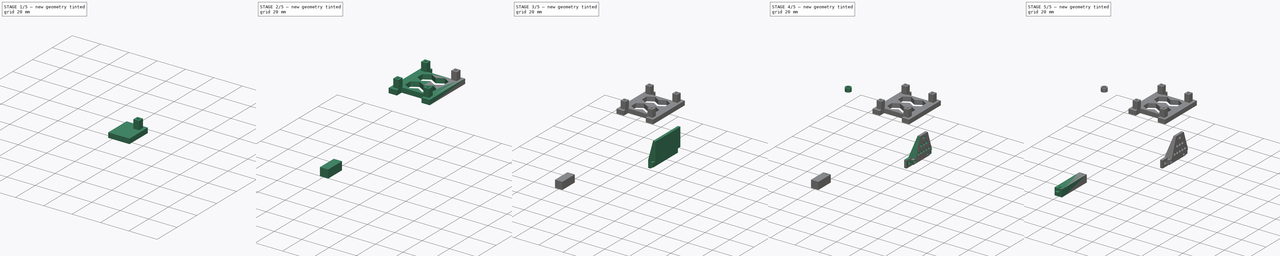
[diagram: build sequence overview — one tinted view per stage of 5, left to right]
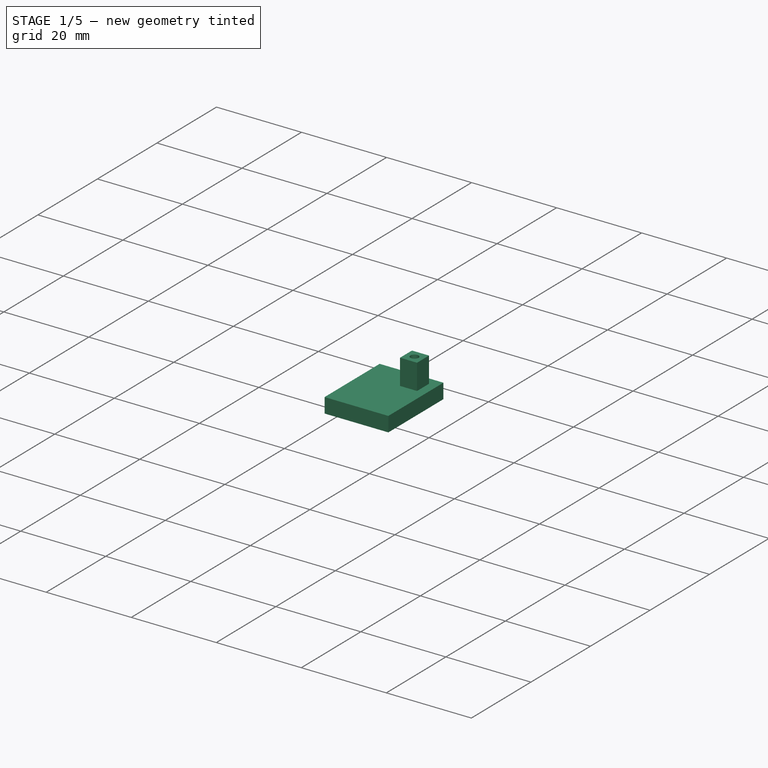
[diagram: stage 1 of 5 — iso view after this stage's code; geometry added in this stage tinted green]
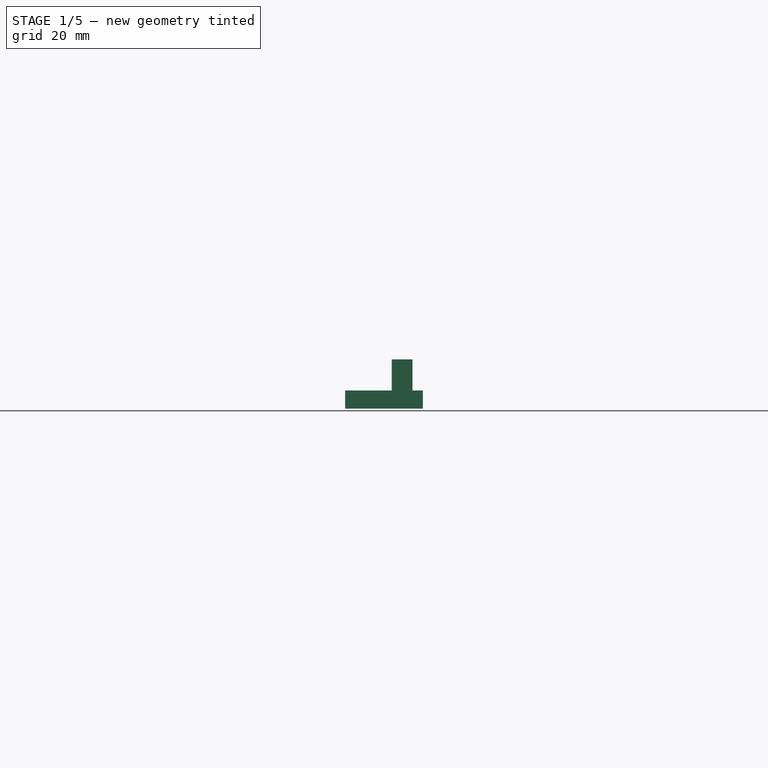
[diagram: stage 1 of 5 — front view after this stage's code; geometry added in this stage tinted green]
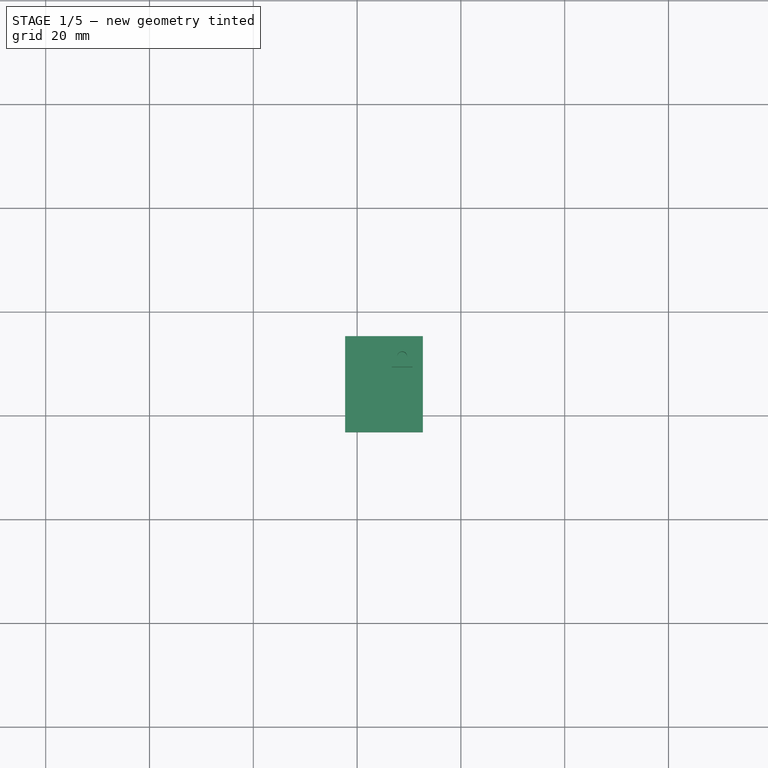
[diagram: stage 1 of 5 — top view after this stage's code; geometry added in this stage tinted green]
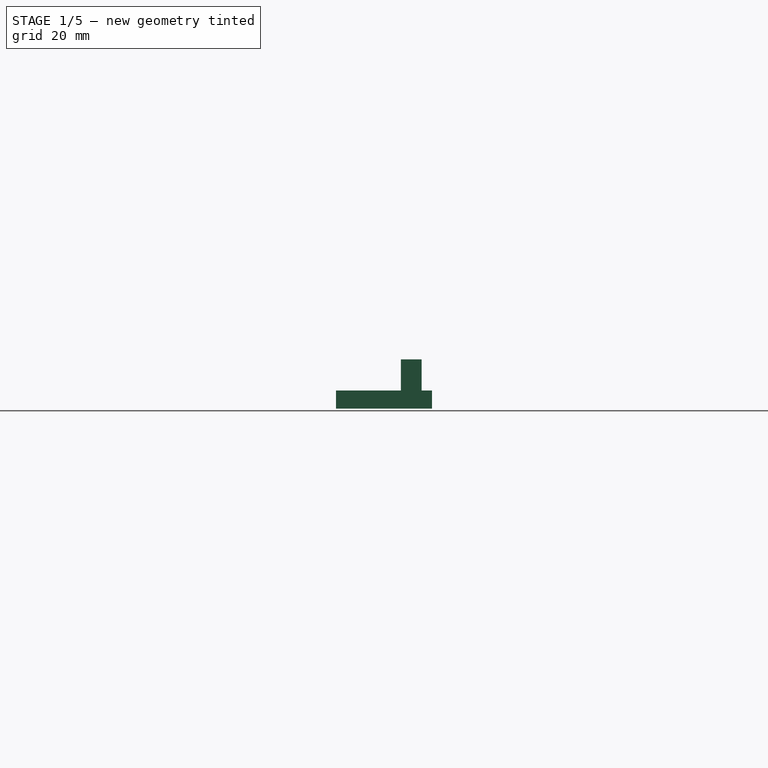
[diagram: stage 1 of 5 — right view after this stage's code; geometry added in this stage tinted green]
FCSTD DOCUMENT  (FreeCAD 0.21R33515 (Git))
Label: shocks
License: All rights reserved
LicenseURL: http://en.wikipedia.org/wiki/All_rights_reserved
objects: Sketcher::SketchObject×14, PartDesign::Pad×8, PartDesign::Pocket×6, PartDesign::Body×5, PartDesign::Mirrored×4, Spreadsheet::Sheet×1, PartDesign::MultiTransform×1
note: 52 computed .brp shape members not serialized (recipe doc carries the construction recipe); baked Part::Feature solids carry a one-line shape summary decoded from their .brp

FEATURE [PartDesign::Body] Body010  label="washer"
  Group = -> [Sketch047,Pad023]
  Origin = -> Origin010
  Placement = pos=(-5,0,0) rot=(0,0,1;0rad)
  Tip = -> Pad023
FEATURE [Spreadsheet::Sheet] Spreadsheet  label="param"
  cells = A1=common; A2(wall_thickness)==2 mm; A3(thread_diam)==3 mm; A4(rail_depth)==2 mm; A5(rail_height)==3.5 mm; A6(rail_length)==20 mm; A7(rail_diam)==2 mm; A8(body_width_front)==28 mm; A9(body_width_back)==33 mm; A10=shock tower; A11(shock_tower_width)==29 mm; A12(tower_diam)==2.3 mm
FEATURE [Sketcher::SketchObject] Sketch
  FullyConstrained = false
  MapMode = 5
  Support = -> [XY_Plane]
  expr: Constraints[9] = <<param>>.body_width_back / 2 + <<param>>.rail_depth
  sketch-geometry (4):
    g0: LineSegment StartX=77.685 StartY=-64.6826 StartZ=0 EndX=92.685 EndY=-64.6826 EndZ=0
    g1: LineSegment StartX=92.685 StartY=-64.6826 StartZ=0 EndX=92.685 EndY=-83.1826 EndZ=0
    g2: LineSegment StartX=92.685 StartY=-83.1826 StartZ=0 EndX=77.685 EndY=-83.1826 EndZ=0
    g3: LineSegment StartX=77.685 StartY=-83.1826 StartZ=0 EndX=77.685 EndY=-64.6826 EndZ=0
  constraints (10):
    c: Coincident(g0,g1)
    c: Coincident(g1,g2)
    c: Coincident(g2,g3)
    c: Coincident(g3,g0)
    c: Horizontal(g0)
    c: Horizontal(g2)
    c: Vertical(g1)
    c: Vertical(g3)
    c: Distance(g0) = 15
    c: Distance(g1) = 18.5
FEATURE [PartDesign::Pad] Pad
  Direction = (0,0,1)
  Length = 3.5
  Length2 = 10
  Profile = -> Sketch
  ReferenceAxis = -> Sketch [N_Axis]
  Refine = true
  Type = 0
  expr: Length = <<param>>.rail_height
FEATURE [PartDesign::Mirrored] Mirrored
  MirrorPlane = -> Pad [Face4]
  Refine = true
FEATURE [PartDesign::Mirrored] Mirrored008
  MirrorPlane = -> Pad [Face3]
  Refine = true
FEATURE [Sketcher::SketchObject] Sketch048
  ExternalGeometry = -> [Pad]
  FullyConstrained = true
  MapMode = 5
  Placement = pos=(0,0,3.5) rot=(0,0,1;0rad)
  Support = -> [Pad]
  expr: Constraints[10] = <<param>>.rail_depth
  sketch-geometry (4):
    g0: LineSegment StartX=86.685 StartY=-66.6826 StartZ=0 EndX=90.685 EndY=-66.6826 EndZ=0
    g1: LineSegment StartX=90.685 StartY=-66.6826 StartZ=0 EndX=90.685 EndY=-70.6826 EndZ=0
    g2: LineSegment StartX=90.685 StartY=-70.6826 StartZ=0 EndX=86.685 EndY=-70.6826 EndZ=0
    g3: LineSegment StartX=86.685 StartY=-70.6826 StartZ=0 EndX=86.685 EndY=-66.6826 EndZ=0
  constraints (12):
    c: Coincident(g0,g1)
    c: Coincident(g1,g2)
    c: Coincident(g2,g3)
    c: Coincident(g3,g0)
    c: Horizontal(g0)
    c: Horizontal(g2)
    c: Vertical(g1)
    c: Vertical(g3)
    c: Distance(g0) = 4
    c: Distance(g1) = 4
    c: DistanceY(g0,g-4) = 2
    c: DistanceX(g-3,g0) = 9
FEATURE [PartDesign::Pad] Pad024
  BaseFeature = -> Pad
  Direction = (0,0,1)
  Length = 6
  Length2 = 10
  Profile = -> Sketch048
  ReferenceAxis = -> Sketch048 [N_Axis]
  Refine = true
  Type = 0
FEATURE [Sketcher::SketchObject] Sketch049
  ExternalGeometry = -> [Pad024]
  FullyConstrained = true
  MapMode = 5
  Placement = pos=(0,0,9.5) rot=(0,0,1;0rad)
  Support = -> [Pad024]
  sketch-geometry (1):
    g0: Circle CenterX=88.685 CenterY=-68.6826 CenterZ=0 NormalX=0 NormalY=0 NormalZ=1 AngleXU=0 Radius=0.95
  constraints (2):
    c: Symmetric(g-3,g-4,g0)
    c: Diameter(g0) = 1.9
FEATURE [PartDesign::Pocket] Pocket
  BaseFeature = -> Pad024
  Direction = (0,0,-1)
  Length = 6
  Length2 = 5
  Profile = -> Sketch049
  ReferenceAxis = -> Sketch049 [N_Axis]
  Refine = true
  Type = 0
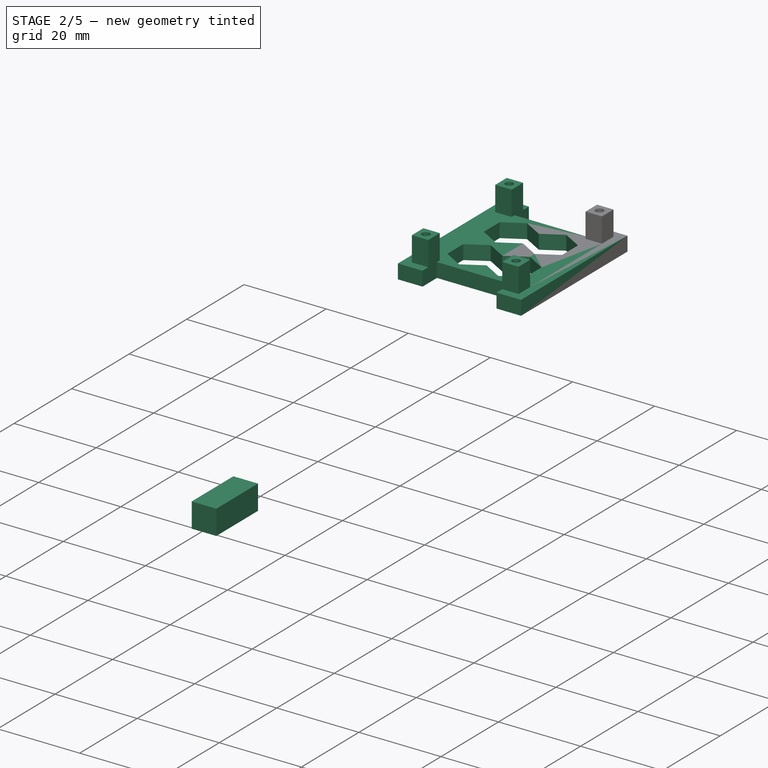
[diagram: stage 2 of 5 — iso view after this stage's code; geometry added in this stage tinted green]
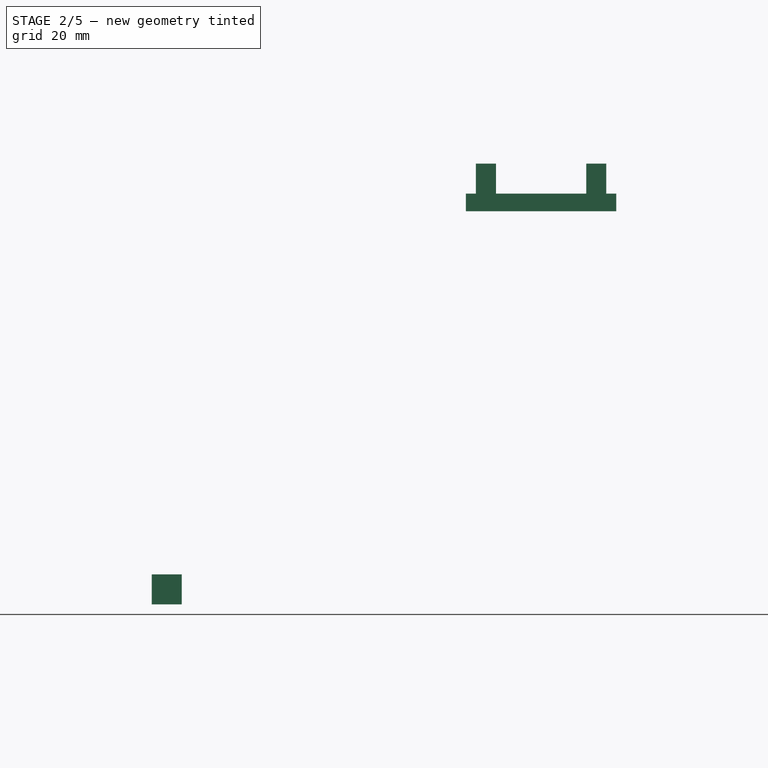
[diagram: stage 2 of 5 — front view after this stage's code; geometry added in this stage tinted green]
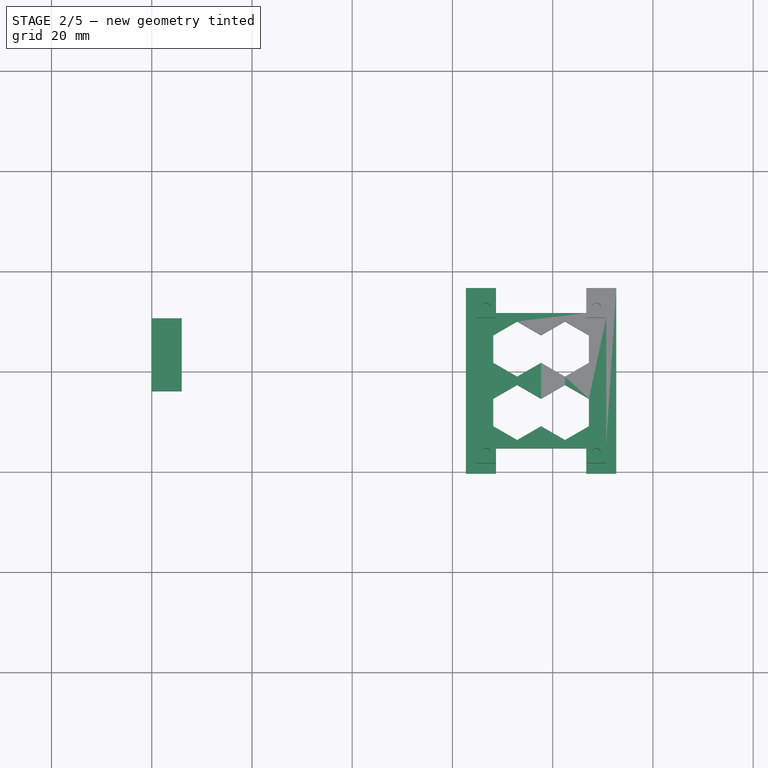
[diagram: stage 2 of 5 — top view after this stage's code; geometry added in this stage tinted green]
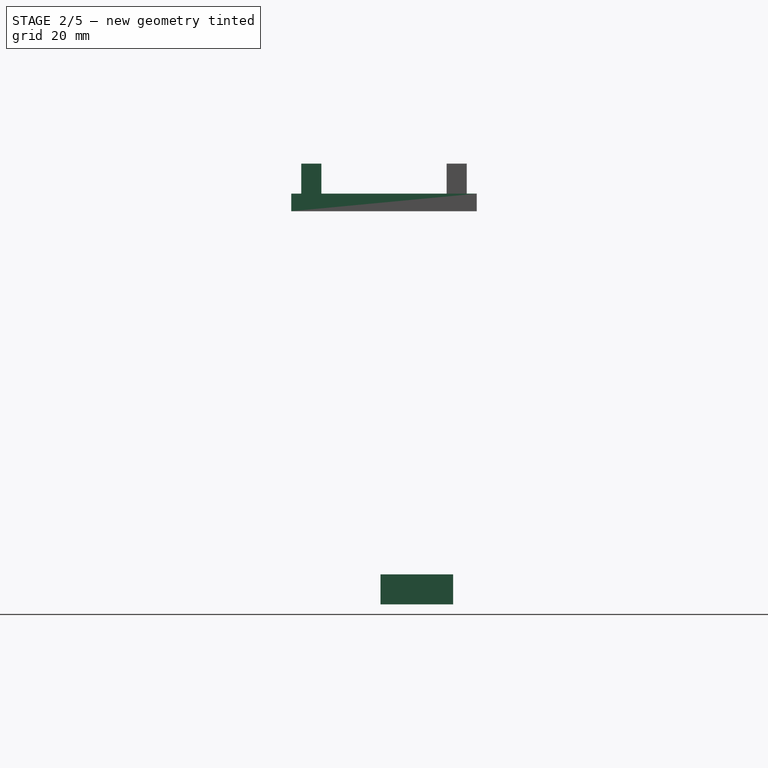
[diagram: stage 2 of 5 — right view after this stage's code; geometry added in this stage tinted green]
FEATURE [PartDesign::Body] Body008  label="front body brace"
  Group = -> [Sketch042,Pad019,Sketch043,Pad020,Mirrored006]
  Origin = -> Origin008
  Placement = pos=(0,0,73) rot=(0,0,1;0rad)
  Tip = -> Mirrored006
FEATURE [Sketcher::SketchObject] Sketch044
  FullyConstrained = false
  MapMode = 5
  Placement = pos=(0,0,0) rot=(0.57735,0.57735,0.57735;2.0944rad)
  Support = -> [YZ_Plane009]
  expr: Constraints[9] = <<param>>.body_width_back / 2 - <<param>>.wall_thickness
  sketch-geometry (4):
    g0: LineSegment StartX=-83.8887 StartY=-72.4541 StartZ=0 EndX=-69.3887 EndY=-72.4541 EndZ=0
    g1: LineSegment StartX=-69.3887 StartY=-72.4541 StartZ=0 EndX=-69.3887 EndY=-78.4541 EndZ=0
    g2: LineSegment StartX=-69.3887 StartY=-78.4541 StartZ=0 EndX=-83.8887 EndY=-78.4541 EndZ=0
    g3: LineSegment StartX=-83.8887 StartY=-78.4541 StartZ=0 EndX=-83.8887 EndY=-72.4541 EndZ=0
  constraints (10):
    c: Coincident(g0,g1)
    c: Coincident(g1,g2)
    c: Coincident(g2,g3)
    c: Coincident(g3,g0)
    c: Horizontal(g0)
    c: Horizontal(g2)
    c: Vertical(g1)
    c: Vertical(g3)
    c: Distance(g1) = 6
    c: Distance(g0) = 14.5
FEATURE [PartDesign::Pad] Pad021
  Direction = (1,-2e-16,3e-16)
  Length = 6
  Length2 = 10
  Placement = pos=(0,0,0) rot=(0.57735,0.57735,0.57735;2.0944rad)
  Profile = -> Sketch044
  ReferenceAxis = -> Sketch044 [N_Axis]
  Refine = true
  Type = 0
FEATURE [Sketcher::SketchObject] Sketch050
  ExternalGeometry = -> [Pad]
  FullyConstrained = false
  MapMode = 5
  Placement = pos=(0,0,3.5) rot=(0,0,1;0rad)
  Support = -> [Pad]
  sketch-geometry (7):
    g0: LineSegment StartX=87.2237 StartY=-79.6066 StartZ=0 EndX=87.2237 EndY=-74.0994 EndZ=0
    g1: LineSegment StartX=87.2237 StartY=-74.0994 StartZ=0 EndX=82.4543 EndY=-71.3458 EndZ=0
    g2: LineSegment StartX=82.4543 StartY=-71.3458 StartZ=0 EndX=77.685 EndY=-74.0994 EndZ=0
    g3: LineSegment StartX=77.685 StartY=-74.0994 StartZ=0 EndX=77.685 EndY=-79.6066 EndZ=0
    g4: LineSegment StartX=77.685 StartY=-79.6066 StartZ=0 EndX=82.4543 EndY=-82.3601 EndZ=0
    g5: LineSegment StartX=82.4543 StartY=-82.3601 StartZ=0 EndX=87.2237 EndY=-79.6066 EndZ=0
    g6: Circle CenterX=82.4543 CenterY=-76.853 CenterZ=0 NormalX=0 NormalY=0 NormalZ=1 AngleXU=0 Radius=5.50715
  constraints (15):
    c: Coincident(g0,g1)
    c: Coincident(g1,g2)
    c: Coincident(g2,g3)
    c: Coincident(g3,g4)
    c: Coincident(g4,g5)
    c: Coincident(g5,g0)
    c: Equal(g0, g1-g5) x5
    c: PointOnObject(g0,g6)
    c: PointOnObject(g1,g6)
    c: PointOnObject(g2,g6)
    c: PointOnObject(g3,g6)
    c: PointOnObject(g4,g6)
    c: PointOnObject(g5,g6)
    c: Parallel(g3,g-6)
    c: DistanceX(g2,g-6) = 0
FEATURE [Sketcher::SketchObject] Sketch051
  ExternalGeometry = -> [Pad]
  FullyConstrained = true
  MapMode = 5
  Placement = pos=(0,0,3.5) rot=(0,0,1;0rad)
  Support = -> [Pad]
  expr: Constraints[9] = <<param>>.rail_depth + <<param>>.wall_thickness + 1 mm
  sketch-geometry (4):
    g0: LineSegment StartX=77.685 StartY=-69.6826 StartZ=0 EndX=86.685 EndY=-69.6826 EndZ=0
    g1: LineSegment StartX=86.685 StartY=-69.6826 StartZ=0 EndX=86.685 EndY=-64.6826 EndZ=0
    g2: LineSegment StartX=86.685 StartY=-64.6826 StartZ=0 EndX=77.685 EndY=-64.6826 EndZ=0
    g3: LineSegment StartX=77.685 StartY=-64.6826 StartZ=0 EndX=77.685 EndY=-69.6826 EndZ=0
  constraints (11):
    c: Coincident(g0,g1)
    c: Coincident(g1,g2)
    c: Coincident(g2,g3)
    c: Coincident(g3,g0)
    c: Horizontal(g0)
    c: Horizontal(g2)
    c: Vertical(g1)
    c: Vertical(g3)
    c: Distance(g2) = 9
    c: Distance(g1) = 5
    c: Coincident(g2,g-3)
FEATURE [PartDesign::Pocket] Pocket024
  BaseFeature = -> Pocket
  Direction = (0,0,-1)
  Length = 5
  Length2 = 5
  Profile = -> Sketch051
  ReferenceAxis = -> Sketch051 [N_Axis]
  Refine = true
  Type = 0
FEATURE [PartDesign::Pocket] Pocket023
  BaseFeature = -> Pocket024
  Direction = (0,0,-1)
  Length = 5
  Length2 = 5
  Profile = -> Sketch050
  ReferenceAxis = -> Sketch050 [N_Axis]
  Refine = true
  Type = 0
FEATURE [PartDesign::MultiTransform] MultiTransform
  BaseFeature = -> Pocket023
  Originals = -> [Pad,Pad024,Pocket,Pocket023,Pocket024]
  Refine = true
  Transformations = -> [Mirrored,Mirrored008]
FEATURE [PartDesign::Body] Body  label="esc mount"
  Group = -> [Sketch,Pad,Mirrored,Mirrored008,Sketch048,Pad024,Sketch049,Pocket,Pocket024,Pocket023,MultiTransform,Sketch050,Sketch051]
  Origin = -> Origin
  Tip = -> MultiTransform
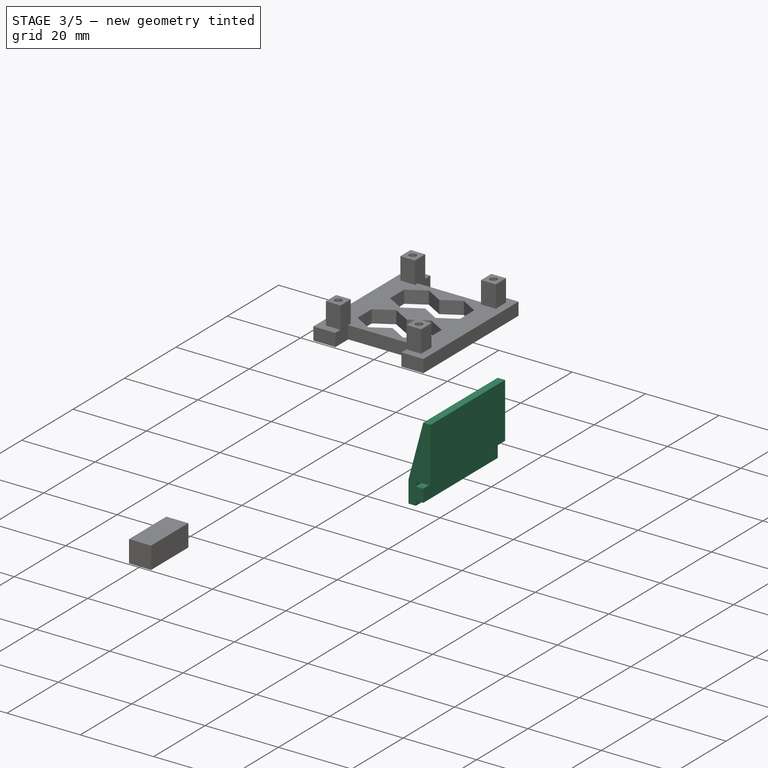
[diagram: stage 3 of 5 — iso view after this stage's code; geometry added in this stage tinted green]
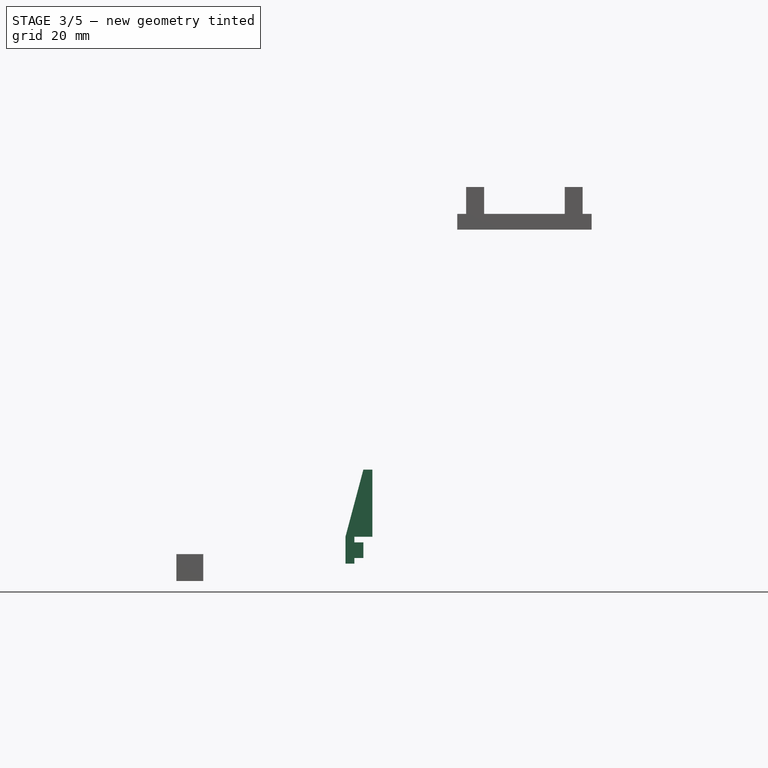
[diagram: stage 3 of 5 — front view after this stage's code; geometry added in this stage tinted green]
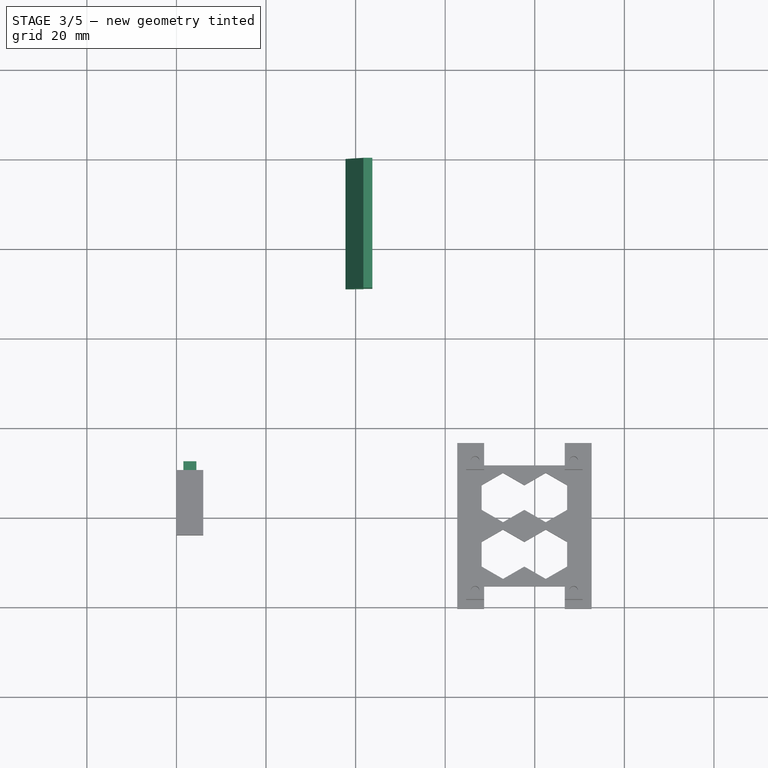
[diagram: stage 3 of 5 — top view after this stage's code; geometry added in this stage tinted green]
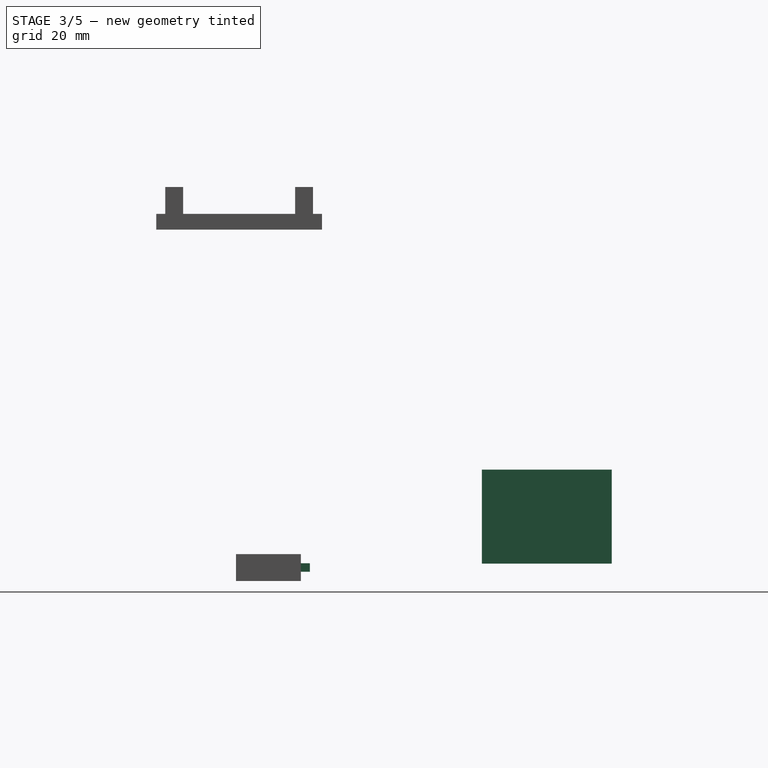
[diagram: stage 3 of 5 — right view after this stage's code; geometry added in this stage tinted green]
FEATURE [Sketcher::SketchObject] Sketch039
  FullyConstrained = false
  MapMode = 5
  Placement = pos=(0,0,0) rot=(1,0,0;1.5708rad)
  Support = -> [XZ_Plane007]
  expr: Constraints[20] = <<param>>.rail_height
  expr: Constraints[21] = <<param>>.rail_depth
  expr: Constraints[22] = <<param>>.wall_thickness
  expr: Constraints[26] = (6 mm - <<param>>.rail_height) / 2
  expr: Constraints[30] = <<param>>.wall_thickness
  sketch-geometry (11):
    g0: LineSegment StartX=37.739 StartY=-68.5846 StartZ=0 EndX=37.739 EndY=-74.5846 EndZ=0
    g1: LineSegment StartX=37.739 StartY=-74.5846 StartZ=0 EndX=39.739 EndY=-74.5846 EndZ=0
    g2: LineSegment StartX=39.739 StartY=-74.5846 StartZ=0 EndX=39.739 EndY=-73.3346 EndZ=0
    g3: LineSegment StartX=39.739 StartY=-73.3346 StartZ=0 EndX=41.739 EndY=-73.3346 EndZ=0
    g4: LineSegment StartX=41.739 StartY=-73.3346 StartZ=0 EndX=41.739 EndY=-69.8346 EndZ=0
    g5: LineSegment StartX=41.739 StartY=-69.8346 StartZ=0 EndX=39.739 EndY=-69.8346 EndZ=0
    g6: LineSegment StartX=39.739 StartY=-69.8346 StartZ=0 EndX=39.739 EndY=-68.5846 EndZ=0
    g7: LineSegment StartX=39.739 StartY=-68.5846 StartZ=0 EndX=43.739 EndY=-68.5846 EndZ=0
    g8: LineSegment StartX=43.739 StartY=-68.5846 StartZ=0 EndX=43.739 EndY=-53.5846 EndZ=0
    g9: LineSegment StartX=43.739 StartY=-53.5846 StartZ=0 EndX=41.739 EndY=-53.5846 EndZ=0
    g10: LineSegment StartX=41.739 StartY=-53.5846 StartZ=0 EndX=37.739 EndY=-68.5846 EndZ=0
  constraints (31):
    c: Vertical(g0)
    c: Coincident(g0,g1)
    c: Horizontal(g1)
    c: Coincident(g1,g2)
    c: Vertical(g2)
    c: Coincident(g2,g3)
    c: Horizontal(g3)
    c: Coincident(g3,g4)
    c: Vertical(g4)
    c: Coincident(g4,g5)
    c: Coincident(g5,g6)
    c: Coincident(g6,g7)
    c: Coincident(g7,g8)
    c: Coincident(g8,g9)
    c: Horizontal(g9)
    c: Coincident(g9,g10)
    c: Coincident(g10,g0)
    c: Horizontal(g7)
    c: Horizontal(g5)
    c: Vertical(g6)
    c: Distance(g4) = 3.5
    c: Distance(g3) = 2
    c: Distance(g1) = 2
    c: Distance(g0) = 6
    c: DistanceX(g2,g5) = 0
    c: DistanceY(g0,g6) = 0
    c: Distance(g2) = 1.25
    c: DistanceY(g7,g9) = 15
    c: Perpendicular(g8,g7)
    c: Distance(g7) = 4
    c: Distance(g9) = 2
FEATURE [PartDesign::Pad] Pad018  label="shock body"
  Direction = (0,-1,-2e-16)
  Length = 29
  Length2 = 10
  Placement = pos=(0,0,0) rot=(1,0,0;1.5708rad)
  Profile = -> Sketch039
  ReferenceAxis = -> Sketch039 [N_Axis]
  Refine = true
  Type = 0
  expr: Length = <<param>>.shock_tower_width
FEATURE [PartDesign::Body] Body007  label="shock tower"
  Group = -> [Sketch039,Pad018,Sketch040,Pocket020,Sketch041,Pocket021]
  Origin = -> Origin007
  Placement = pos=(0,-66,71) rot=(0,0,1;0rad)
  Tip = -> Pocket021
FEATURE [Sketcher::SketchObject] Sketch042
  FullyConstrained = false
  MapMode = 5
  Placement = pos=(0,0,0) rot=(0.57735,0.57735,0.57735;2.0944rad)
  Support = -> [YZ_Plane008]
  expr: Constraints[9] = <<param>>.body_width_front / 2 - <<param>>.wall_thickness
  sketch-geometry (4):
    g0: LineSegment StartX=-82.9695 StartY=-72.4541 StartZ=0 EndX=-70.9695 EndY=-72.4541 EndZ=0
    g1: LineSegment StartX=-70.9695 StartY=-72.4541 StartZ=0 EndX=-70.9695 EndY=-78.4541 EndZ=0
    g2: LineSegment StartX=-70.9695 StartY=-78.4541 StartZ=0 EndX=-82.9695 EndY=-78.4541 EndZ=0
    g3: LineSegment StartX=-82.9695 StartY=-78.4541 StartZ=0 EndX=-82.9695 EndY=-72.4541 EndZ=0
  constraints (10):
    c: Coincident(g0,g1)
    c: Coincident(g1,g2)
    c: Coincident(g2,g3)
    c: Coincident(g3,g0)
    c: Horizontal(g0)
    c: Horizontal(g2)
    c: Vertical(g1)
    c: Vertical(g3)
    c: Distance(g1) = 6
    c: Distance(g0) = 12
FEATURE [PartDesign::Pad] Pad019
  Direction = (1,-2e-16,3e-16)
  Length = 6
  Length2 = 10
  Placement = pos=(0,0,0) rot=(0.57735,0.57735,0.57735;2.0944rad)
  Profile = -> Sketch042
  ReferenceAxis = -> Sketch042 [N_Axis]
  Refine = true
  Type = 0
FEATURE [Sketcher::SketchObject] Sketch045
  ExternalGeometry = -> [Pad021]
  FullyConstrained = true
  MapMode = 5
  Placement = pos=(-3.05e-14,-69.3887,1.53e-14) rot=(0.57735,0.57735,0.57735;4.18879rad)
  Support = -> [Pad021]
  expr: Constraints[10] = (6 mm - 1.9 mm) / 2
  expr: Constraints[11] = (6 mm - 2.9 mm) / 2
  sketch-geometry (4):
    g0: LineSegment StartX=-76.4041 StartY=4.45 StartZ=0 EndX=-74.5041 EndY=4.45 EndZ=0
    g1: LineSegment StartX=-74.5041 StartY=4.45 StartZ=0 EndX=-74.5041 EndY=1.55 EndZ=0
    g2: LineSegment StartX=-74.5041 StartY=1.55 StartZ=0 EndX=-76.4041 EndY=1.55 EndZ=0
    g3: LineSegment StartX=-76.4041 StartY=1.55 StartZ=0 EndX=-76.4041 EndY=4.45 EndZ=0
  constraints (12):
    c: Coincident(g0,g1)
    c: Coincident(g1,g2)
    c: Coincident(g2,g3)
    c: Coincident(g3,g0)
    c: Horizontal(g0)
    c: Horizontal(g2)
    c: Vertical(g1)
    c: Vertical(g3)
    c: Distance(g0) = 1.9
    c: Distance(g1) = 2.9
    c: DistanceX(g-3,g0) = 2.05
    c: DistanceY(g0,g-3) = 1.55
FEATURE [PartDesign::Pad] Pad022
  BaseFeature = -> Pad021
  Direction = (4e-16,1,-2e-16)
  Length = 2
  Length2 = 10
  Placement = pos=(0,0,0) rot=(0.57735,0.57735,0.57735;2.0944rad)
  Profile = -> Sketch045
  ReferenceAxis = -> Sketch045 [N_Axis]
  Refine = true
  Type = 0
  expr: Length = <<param>>.wall_thickness
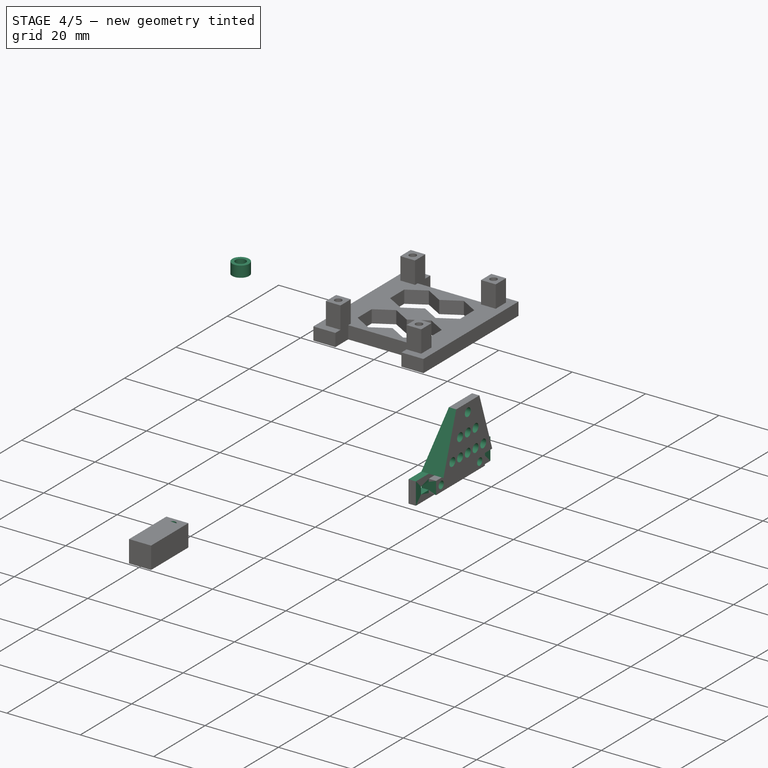
[diagram: stage 4 of 5 — iso view after this stage's code; geometry added in this stage tinted green]
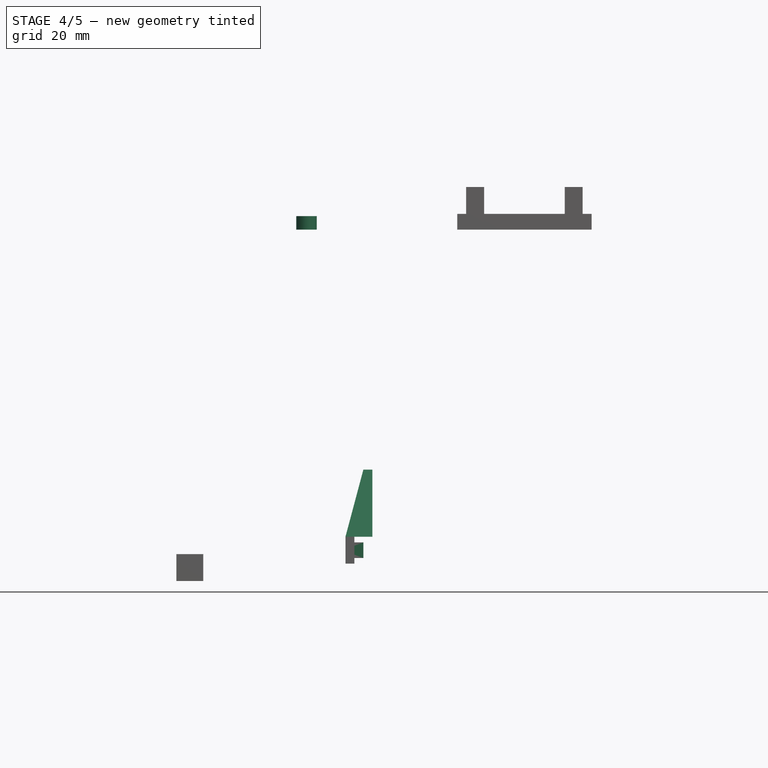
[diagram: stage 4 of 5 — front view after this stage's code; geometry added in this stage tinted green]
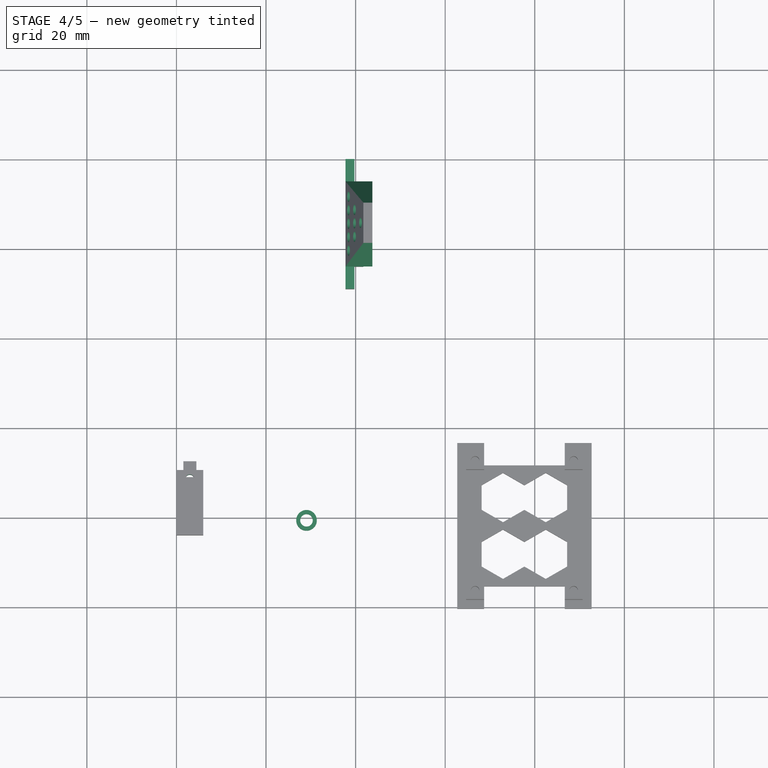
[diagram: stage 4 of 5 — top view after this stage's code; geometry added in this stage tinted green]
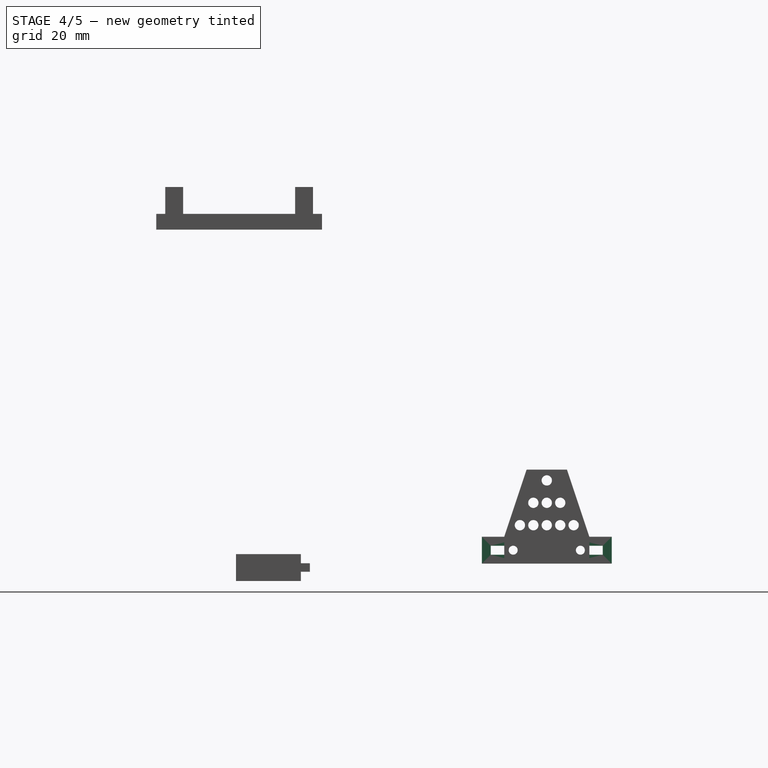
[diagram: stage 4 of 5 — right view after this stage's code; geometry added in this stage tinted green]
FEATURE [Sketcher::SketchObject] Sketch040
  ExternalGeometry = -> [Pad018]
  FullyConstrained = false
  MapMode = 5
  Placement = pos=(37.739,0,0) rot=(0.707107,0,-0.707107;3.14159rad)
  Support = -> [Pad018]
  expr: Constraints[0] = <<param>>.rail_diam
  expr: Constraints[1] = <<param>>.rail_diam
  expr: Constraints[22] = <<param>>.wall_thickness
  expr: Constraints[23] = <<param>>.wall_thickness
  expr: Constraints[26] = <<param>>.wall_thickness
  expr: Constraints[27] = <<param>>.wall_thickness
  expr: Constraints[28] = <<param>>.wall_thickness
  expr: Constraints[29] = <<param>>.wall_thickness
  expr: Constraints[4] = (<<param>>.shock_tower_width - 15 mm) / 2
  expr: Constraints[50] = <<param>>.tower_diam
  expr: Constraints[5] = 6 mm / 2
  expr: Constraints[67] = <<param>>.tower_diam
  expr: Constraints[74] = (<<param>>.shock_tower_width - 4 * 3 mm) / 2
  sketch-geometry (27):
    g0: Circle CenterX=71.5846 CenterY=7 CenterZ=0 NormalX=0 NormalY=0 NormalZ=1 AngleXU=0 Radius=1
    g1: Circle CenterX=71.5846 CenterY=22 CenterZ=0 NormalX=0 NormalY=0 NormalZ=1 AngleXU=0 Radius=1
    g2: LineSegment StartX=70.5846 StartY=2 StartZ=0 EndX=72.5846 EndY=2 EndZ=0
    g3: LineSegment StartX=72.5846 StartY=2 StartZ=0 EndX=72.5846 EndY=5 EndZ=0
    g4: LineSegment StartX=72.5846 StartY=5 StartZ=0 EndX=70.5846 EndY=5 EndZ=0
    g5: LineSegment StartX=70.5846 StartY=5 StartZ=0 EndX=70.5846 EndY=2 EndZ=0
    g6: LineSegment StartX=70.5846 StartY=27 StartZ=0 EndX=72.5846 EndY=27 EndZ=0
    g7: LineSegment StartX=72.5846 StartY=27 StartZ=0 EndX=72.5846 EndY=24 EndZ=0
    g8: LineSegment StartX=72.5846 StartY=24 StartZ=0 EndX=70.5846 EndY=24 EndZ=0
    g9: LineSegment StartX=70.5846 StartY=24 StartZ=0 EndX=70.5846 EndY=27 EndZ=0
    g10: LineSegment StartX=53.5846 StartY=29 StartZ=0 EndX=68.5846 EndY=29 EndZ=0
    g11: LineSegment StartX=68.5846 StartY=29 StartZ=0 EndX=68.5846 EndY=24 EndZ=0
    g12: LineSegment StartX=68.5846 StartY=24 StartZ=0 EndX=53.5846 EndY=19 EndZ=0
    g13: LineSegment StartX=53.5846 StartY=19 StartZ=0 EndX=53.5846 EndY=29 EndZ=0
    g14: LineSegment StartX=53.5846 StartY=0 StartZ=0 EndX=68.5846 EndY=0 EndZ=0
    g15: LineSegment StartX=68.5846 StartY=0 StartZ=0 EndX=68.5846 EndY=5 EndZ=0
    g16: LineSegment StartX=68.5846 StartY=5 StartZ=0 EndX=53.5846 EndY=10 EndZ=0
    g17: LineSegment StartX=53.5846 StartY=10 StartZ=0 EndX=53.5846 EndY=0 EndZ=0
    g18: Circle CenterX=66.0001 CenterY=17.5 CenterZ=0 NormalX=0 NormalY=0 NormalZ=1 AngleXU=0 Radius=1.15
    g19: Circle CenterX=66.0001 CenterY=11.5 CenterZ=0 NormalX=0 NormalY=0 NormalZ=1 AngleXU=0 Radius=1.15
    g20: Circle CenterX=66.0001 CenterY=14.5 CenterZ=0 NormalX=0 NormalY=0 NormalZ=1 AngleXU=0 Radius=1.15
    g21: Circle CenterX=66.0001 CenterY=8.5 CenterZ=0 NormalX=0 NormalY=0 NormalZ=1 AngleXU=0 Radius=1.15
    g22: Circle CenterX=61.0001 CenterY=11.5 CenterZ=0 NormalX=0 NormalY=0 NormalZ=1 AngleXU=0 Radius=1.15
    g23: Circle CenterX=61.0001 CenterY=14.5 CenterZ=0 NormalX=0 NormalY=0 NormalZ=1 AngleXU=0 Radius=1.15
    g24: Circle CenterX=61.0001 CenterY=17.5 CenterZ=0 NormalX=0 NormalY=0 NormalZ=1 AngleXU=0 Radius=1.15
    g25: Circle CenterX=56.0001 CenterY=14.5 CenterZ=0 NormalX=0 NormalY=0 NormalZ=1 AngleXU=0 Radius=1.15
    g26: Circle CenterX=66.0001 CenterY=20.5 CenterZ=0 NormalX=0 NormalY=0 NormalZ=1 AngleXU=0 Radius=1.15
  constraints (76):
    c: Diameter(g0) = 2
    c: Diameter(g1) = 2
    c: DistanceX(g1,g0) = 0
    c: DistanceY(g0,g1) = 15
    c: DistanceY(g1,g-3) = 7
    c: DistanceX(g1,g-3) = 3
    c: Coincident(g2,g3)
    c: Coincident(g3,g4)
    c: Coincident(g4,g5)
    c: Coincident(g5,g2)
    c: Horizontal(g2)
    c: Horizontal(g4)
    c: Vertical(g3)
    c: Vertical(g5)
    c: Coincident(g6,g7)
    c: Coincident(g7,g8)
    c: Coincident(g8,g9)
    c: Coincident(g9,g6)
    c: Horizontal(g6)
    c: Horizontal(g8)
    c: Vertical(g7)
    c: Vertical(g9)
    c: DistanceY(g6,g-3) = 2
    c: DistanceY(g-4,g2) = 2
    c: DistanceY(g-4,g3) = 5
    c: DistanceY(g7,g-3) = 5
    c: DistanceX(g-5,g6) = 2
    c: DistanceX(g-6,g2) = 2
    c: DistanceX(g2,g-4) = 2
    c: DistanceX(g6,g-3) = 2
    c: Coincident(g10,g-7)
    c: Coincident(g10,g-5)
    c: Coincident(g10,g11)
    c: Vertical(g11)
    c: Coincident(g11,g12)
    c: Coincident(g12,g13)
    c: Coincident(g13,g10)
    c: Vertical(g13)
    c: Coincident(g14,g-8)
    c: Coincident(g14,g-6)
    c: Coincident(g14,g15)
    c: Vertical(g15)
    c: Coincident(g15,g16)
    c: Coincident(g16,g17)
    c: Coincident(g17,g14)
    c: Vertical(g17)
    c: DistanceY(g11,g8) = 0
    c: DistanceY(g15,g4) = 0
    c: DistanceY(g12,g11) = 5
    c: DistanceY(g15,g16) = 5
    c: Diameter(g18) = 2.3
    c: Equal(g18,g19) = 2.5
    c: Equal(g18,g20) = 2.5
    c: Equal(g20,g21) = 2.5
    c: DistanceX(g18,g20) = 0
    c: DistanceX(g18,g19) = 0
    c: DistanceX(g18,g21) = 0
    c: DistanceY(g20,g18) = 3
    c: DistanceY(g19,g20) = 3
    c: DistanceY(g21,g19) = 3
    c: Equal(g18,g24) = 2.5
    c: Equal(g24,g22) = 2.5
    c: Equal(g24,g23) = 2.5
    c: DistanceX(g24,g23) = 0
    c: DistanceX(g24,g22) = 0
    c: DistanceY(g23,g24) = 3
    c: DistanceY(g22,g23) = 3
    c: Diameter(g25) = 2.3
    c: DistanceX(g25,g23) = 5
    c: Equal(g25,g26) = 2.3
    c: DistanceY(g18,g26) = 3
    c: DistanceX(g26,g18) = 0
    c: DistanceY(g23,g20) = 0
    c: DistanceY(g25,g23) = 0
    c: DistanceY(g26,g-3) = 8.5
    c: DistanceX(g23,g20) = 5
FEATURE [PartDesign::Pocket] Pocket020  label="shock pockets"
  BaseFeature = -> Pad018
  Direction = (1,0,2e-16)
  Length = 13
  Length2 = 5
  Placement = pos=(0,0,0) rot=(1,0,0;1.5708rad)
  Profile = -> Sketch040
  ReferenceAxis = -> Sketch040 [N_Axis]
  Refine = true
  Type = 0
FEATURE [Sketcher::SketchObject] Sketch041
  ExternalGeometry = -> [Pocket020]
  FullyConstrained = true
  MapMode = 5
  Placement = pos=(41.739,0,0) rot=(0.707107,0,0.707107;3.14159rad)
  Support = -> [Pocket020]
  sketch-geometry (8):
    g0: LineSegment StartX=-74.5846 StartY=29 StartZ=0 EndX=-68.5846 EndY=29 EndZ=0
    g1: LineSegment StartX=-68.5846 StartY=29 StartZ=0 EndX=-68.5846 EndY=24 EndZ=0
    g2: LineSegment StartX=-68.5846 StartY=24 StartZ=0 EndX=-74.5846 EndY=24 EndZ=0
    g3: LineSegment StartX=-74.5846 StartY=24 StartZ=0 EndX=-74.5846 EndY=29 EndZ=0
    g4: LineSegment StartX=-68.5846 StartY=5 StartZ=0 EndX=-74.5846 EndY=5 EndZ=0
    g5: LineSegment StartX=-74.5846 StartY=5 StartZ=0 EndX=-74.5846 EndY=0 EndZ=0
    g6: LineSegment StartX=-74.5846 StartY=0 StartZ=0 EndX=-68.5846 EndY=0 EndZ=0
    g7: LineSegment StartX=-68.5846 StartY=0 StartZ=0 EndX=-68.5846 EndY=5 EndZ=0
  constraints (22):
    c: Coincident(g0,g1)
    c: Coincident(g1,g2)
    c: Coincident(g2,g3)
    c: Coincident(g3,g0)
    c: Horizontal(g0)
    c: Horizontal(g2)
    c: Vertical(g1)
    c: Vertical(g3)
    c: Coincident(g4,g5)
    c: Coincident(g5,g6)
    c: Coincident(g6,g7)
    c: Coincident(g7,g4)
    c: Horizontal(g4)
    c: Horizontal(g6)
    c: Vertical(g5)
    c: Vertical(g7)
    c: Coincident(g4,g-5)
    c: Coincident(g1,g-8)
    c: DistanceY(g-3,g0) = 0
    c: DistanceX(g0,g-9) = 0
    c: DistanceX(g5,g-10) = 0
    c: DistanceY(g-6,g6) = 0
FEATURE [PartDesign::Pocket] Pocket021  label="shock rail cutout"
  BaseFeature = -> Pocket020
  Direction = (-1,0,2e-16)
  Length = 2
  Length2 = 5
  Placement = pos=(0,0,0) rot=(1,0,0;1.5708rad)
  Profile = -> Sketch041
  ReferenceAxis = -> Sketch041 [N_Axis]
  Refine = true
  Type = 0
  expr: Length = <<param>>.rail_depth
FEATURE [Sketcher::SketchObject] Sketch046
  ExternalGeometry = -> [Pad022]
  FullyConstrained = true
  MapMode = 5
  Placement = pos=(2.03e-14,-3.19e-14,-72.4541) rot=(0,0,-1;1.5708rad)
  Support = -> [Pad022]
  expr: Constraints[0] = <<param>>.rail_diam
  expr: Constraints[2] = 6 mm / 2
  sketch-geometry (1):
    g0: Circle CenterX=71.3887 CenterY=3 CenterZ=0 NormalX=0 NormalY=0 NormalZ=1 AngleXU=0 Radius=1
  constraints (3):
    c: Diameter(g0) = 2
    c: DistanceX(g-3,g0) = 2
    c: DistanceY(g0,g-3) = 3
FEATURE [PartDesign::Pocket] Pocket022
  BaseFeature = -> Pad022
  Direction = (7e-16,-7e-16,-1)
  Length = 6
  Length2 = 5
  Placement = pos=(0,0,0) rot=(0.57735,0.57735,0.57735;2.0944rad)
  Profile = -> Sketch046
  ReferenceAxis = -> Sketch046 [N_Axis]
  Refine = true
  Type = 0
FEATURE [PartDesign::Body] Body009  label="back body brace"
  Group = -> [Sketch044,Pad021,Sketch045,Pad022,Pocket022,Mirrored007,Sketch046]
  Origin = -> Origin009
  Placement = pos=(-33,0,64) rot=(0,0,1;0rad)
  Tip = -> Mirrored007
FEATURE [Sketcher::SketchObject] Sketch047
  FullyConstrained = false
  MapMode = 5
  Support = -> [XY_Plane010]
  sketch-geometry (2):
    g0: Circle CenterX=29.0421 CenterY=-81.9249 CenterZ=0 NormalX=0 NormalY=0 NormalZ=1 AngleXU=0 Radius=1.4
    g1: Circle CenterX=29.0421 CenterY=-81.9249 CenterZ=0 NormalX=0 NormalY=0 NormalZ=1 AngleXU=0 Radius=2.3
  constraints (3):
    c: Coincident(g1,g0)
    c: Diameter(g0) = 2.8
    c: Diameter(g1) = 4.6
FEATURE [PartDesign::Pad] Pad023
  Direction = (0,0,1)
  Length = 3
  Length2 = 10
  Profile = -> Sketch047
  ReferenceAxis = -> Sketch047 [N_Axis]
  Refine = true
  Type = 0
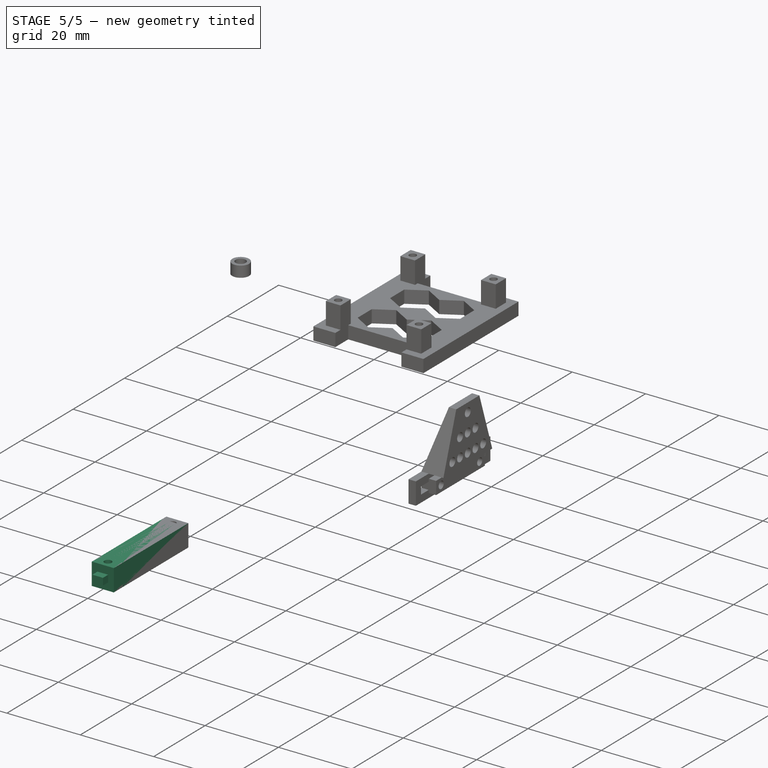
[diagram: stage 5 of 5 — iso view after this stage's code; geometry added in this stage tinted green]
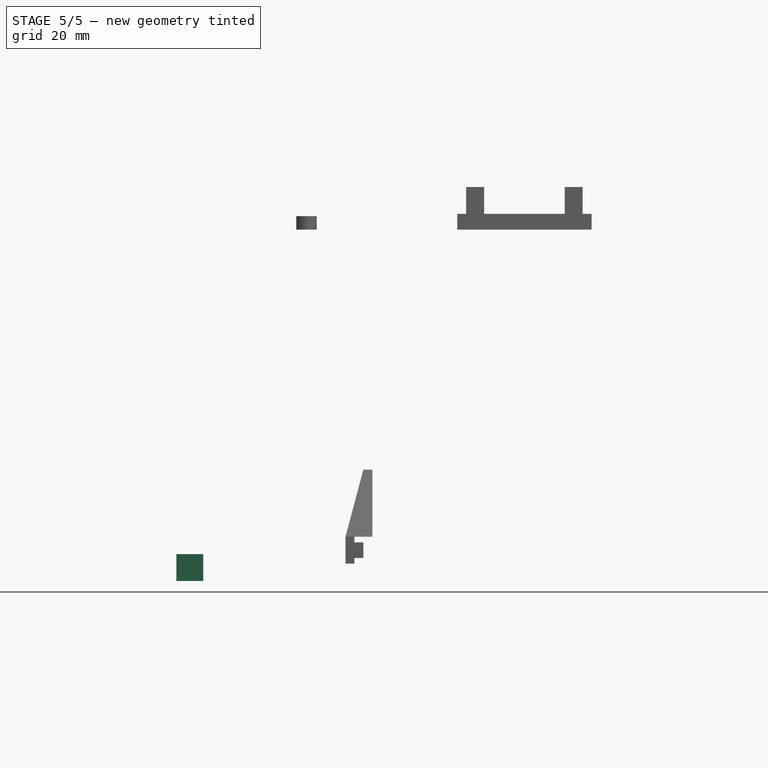
[diagram: stage 5 of 5 — front view after this stage's code; geometry added in this stage tinted green]
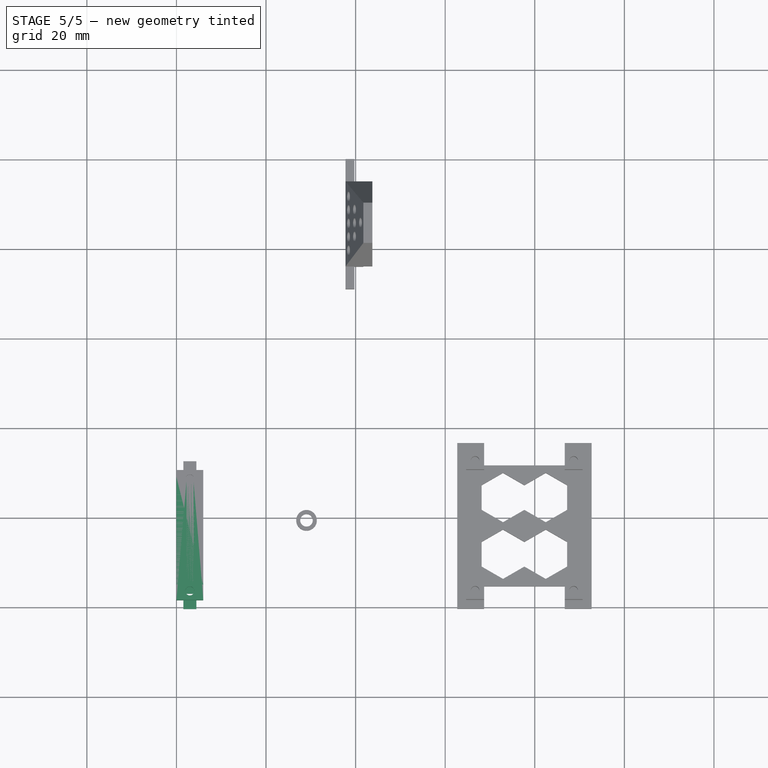
[diagram: stage 5 of 5 — top view after this stage's code; geometry added in this stage tinted green]
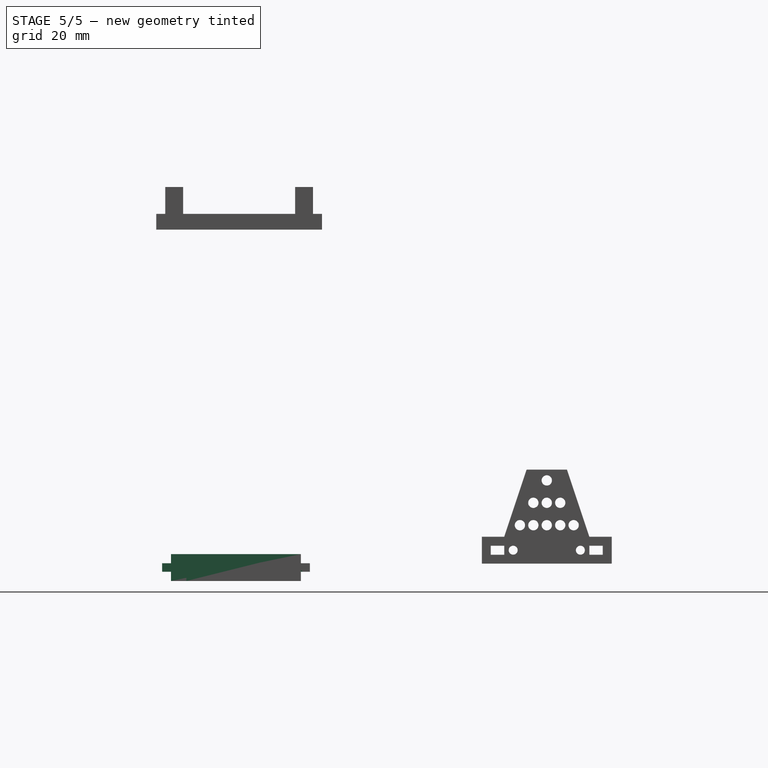
[diagram: stage 5 of 5 — right view after this stage's code; geometry added in this stage tinted green]
FEATURE [Sketcher::SketchObject] Sketch043
  ExternalGeometry = -> [Pad019]
  FullyConstrained = true
  MapMode = 5
  Placement = pos=(-3.12e-14,-70.9695,1.56e-14) rot=(0.57735,0.57735,0.57735;4.18879rad)
  Support = -> [Pad019]
  expr: Constraints[10] = (6 mm - 1.9 mm) / 2
  expr: Constraints[11] = (6 mm - 2.9 mm) / 2
  sketch-geometry (4):
    g0: LineSegment StartX=-76.4041 StartY=4.45 StartZ=0 EndX=-74.5041 EndY=4.45 EndZ=0
    g1: LineSegment StartX=-74.5041 StartY=4.45 StartZ=0 EndX=-74.5041 EndY=1.55 EndZ=0
    g2: LineSegment StartX=-74.5041 StartY=1.55 StartZ=0 EndX=-76.4041 EndY=1.55 EndZ=0
    g3: LineSegment StartX=-76.4041 StartY=1.55 StartZ=0 EndX=-76.4041 EndY=4.45 EndZ=0
  constraints (12):
    c: Coincident(g0,g1)
    c: Coincident(g1,g2)
    c: Coincident(g2,g3)
    c: Coincident(g3,g0)
    c: Horizontal(g0)
    c: Horizontal(g2)
    c: Vertical(g1)
    c: Vertical(g3)
    c: Distance(g0) = 1.9
    c: Distance(g1) = 2.9
    c: DistanceX(g-3,g0) = 2.05
    c: DistanceY(g0,g-3) = 1.55
FEATURE [PartDesign::Pad] Pad020
  BaseFeature = -> Pad019
  Direction = (4e-16,1,-2e-16)
  Length = 2
  Length2 = 10
  Placement = pos=(0,0,0) rot=(0.57735,0.57735,0.57735;2.0944rad)
  Profile = -> Sketch043
  ReferenceAxis = -> Sketch043 [N_Axis]
  Refine = true
  Type = 0
  expr: Length = <<param>>.wall_thickness
FEATURE [PartDesign::Mirrored] Mirrored006
  BaseFeature = -> Pad020
  MirrorPlane = -> Pad020 [Face2]
  Originals = -> [Pad020,Pad019]
  Placement = pos=(0,0,0) rot=(0.57735,0.57735,0.57735;2.0944rad)
  Refine = true
FEATURE [PartDesign::Mirrored] Mirrored007
  BaseFeature = -> Pocket022
  MirrorPlane = -> Pad022 [Face2]
  Originals = -> [Pad022,Pad021,Pocket022]
  Placement = pos=(0,0,0) rot=(0.57735,0.57735,0.57735;2.0944rad)
  Refine = true
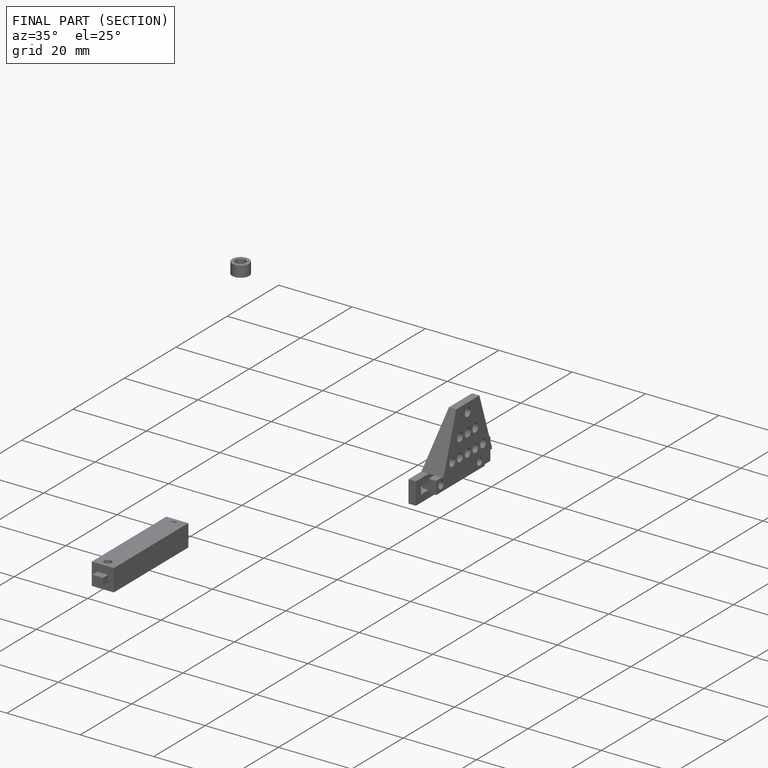
[diagram: finished part — half-section view (interior)]
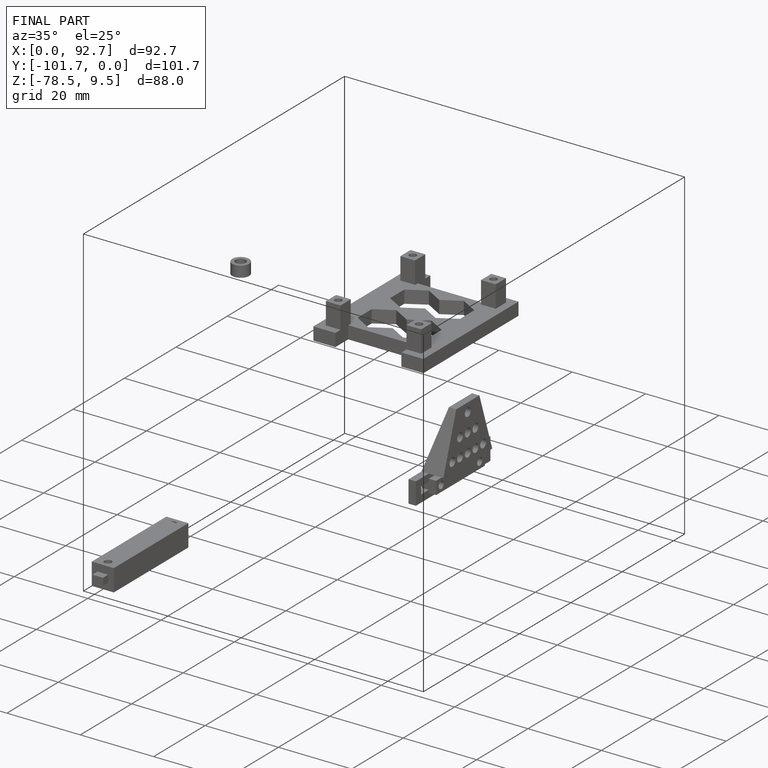
[diagram: finished part — iso view with bounding-box wireframe]
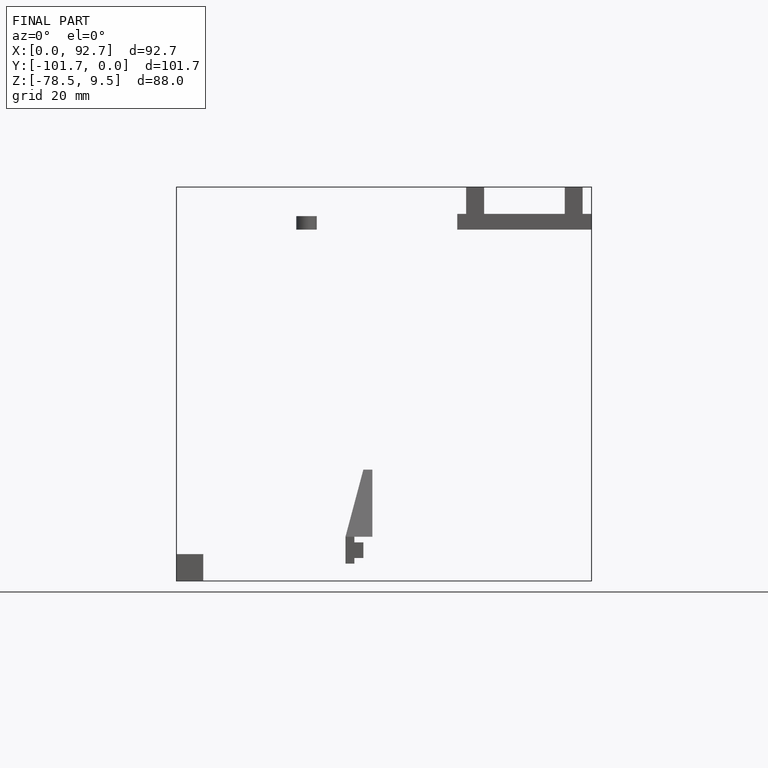
[diagram: finished part — front view with bounding-box wireframe]
